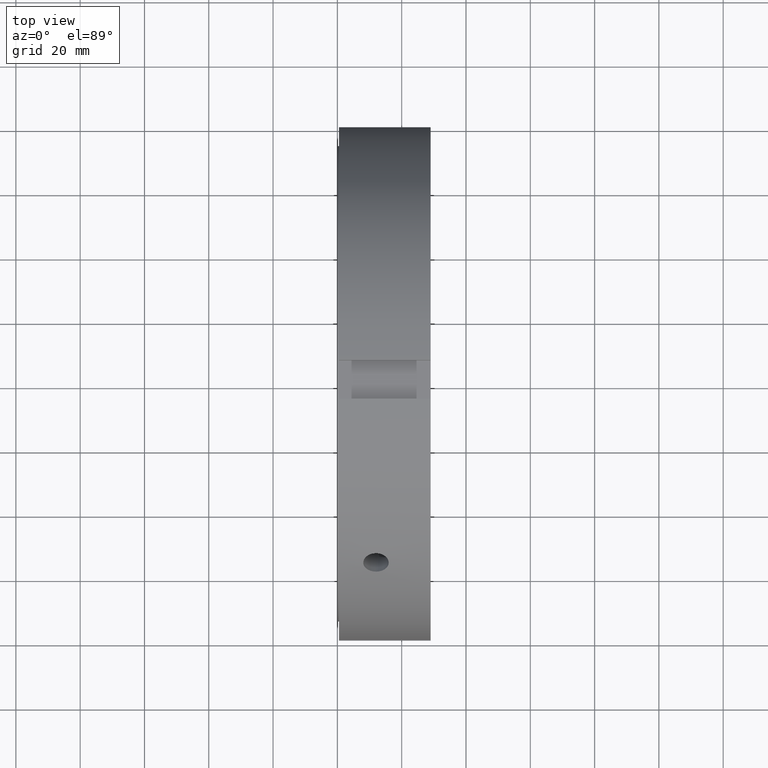
[diagram: clean part render]
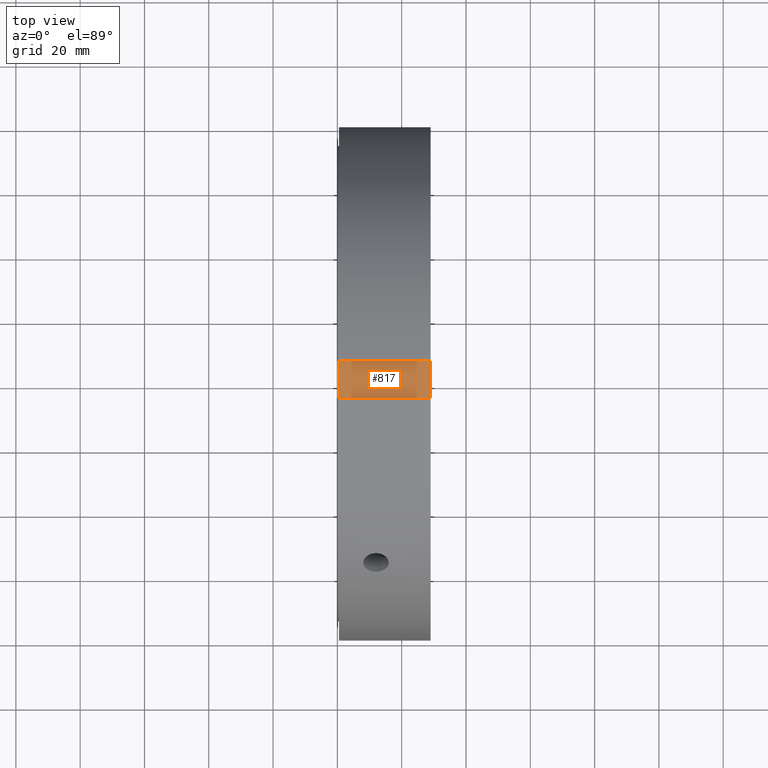
[diagram: same view with one face highlighted and labeled with its STEP entity id]
A machine part, top view. The second image highlights one B-rep face of the part: STEP entity #817.
In plain terms, the highlighted planar face has unit normal (0, 0, -1).
Its self-contained STEP definition (entity closure, byte-faithful):
#721=CARTESIAN_POINT('',(0.49999999999998,6.000000000000001,75.0));
#722=VERTEX_POINT('',#721);
#731=CARTESIAN_POINT('',(28.999999999999986,6.000000000000001,75.0));
#732=VERTEX_POINT('',#731);
#733=CARTESIAN_POINT('',(28.999999999999986,6.000000000000001,75.0));
#734=DIRECTION('',(-1.0,0.0,0.0));
#735=VECTOR('',#734,28.500000000000007);
#736=LINE('',#733,#735);
#737=EDGE_CURVE('',#732,#722,#736,.T.);
#763=CARTESIAN_POINT('',(0.49999999999998,-5.999999999999992,75.0));
#764=VERTEX_POINT('',#763);
#779=CARTESIAN_POINT('',(28.999999999999986,-5.999999999999992,75.0));
#780=VERTEX_POINT('',#779);
#787=CARTESIAN_POINT('',(28.999999999999986,-5.999999999999992,75.0));
#788=DIRECTION('',(-1.0,0.0,0.0));
#789=VECTOR('',#788,28.500000000000007);
#790=LINE('',#787,#789);
#791=EDGE_CURVE('',#780,#764,#790,.T.);
#796=CARTESIAN_POINT('',(28.999999999999986,-5.999999999999992,75.0));
#797=DIRECTION('',(0.0,0.0,-1.0));
#798=DIRECTION('',(0.0,1.0,0.0));
#799=AXIS2_PLACEMENT_3D('',#796,#797,#798);
#800=PLANE('',#799);
#801=CARTESIAN_POINT('',(0.499999999999978,-5.999999999999986,75.0));
#802=DIRECTION('',(0.0,1.0,0.0));
#803=VECTOR('',#802,11.999999999999989);
#804=LINE('',#801,#803);
#805=EDGE_CURVE('',#764,#722,#804,.T.);
#806=ORIENTED_EDGE('',*,*,#805,.F.);
#807=ORIENTED_EDGE('',*,*,#791,.F.);
#808=CARTESIAN_POINT('',(28.999999999999986,6.0,75.0));
#809=DIRECTION('',(0.0,-1.0,0.0));
#810=VECTOR('',#809,11.999999999999993);
#811=LINE('',#808,#810);
#812=EDGE_CURVE('',#732,#780,#811,.T.);
#813=ORIENTED_EDGE('',*,*,#812,.F.);
#814=ORIENTED_EDGE('',*,*,#737,.T.);
#815=EDGE_LOOP('',(#806,#807,#813,#814));
#816=FACE_OUTER_BOUND('',#815,.T.);
#817=ADVANCED_FACE('',(#816),#800,.F.);